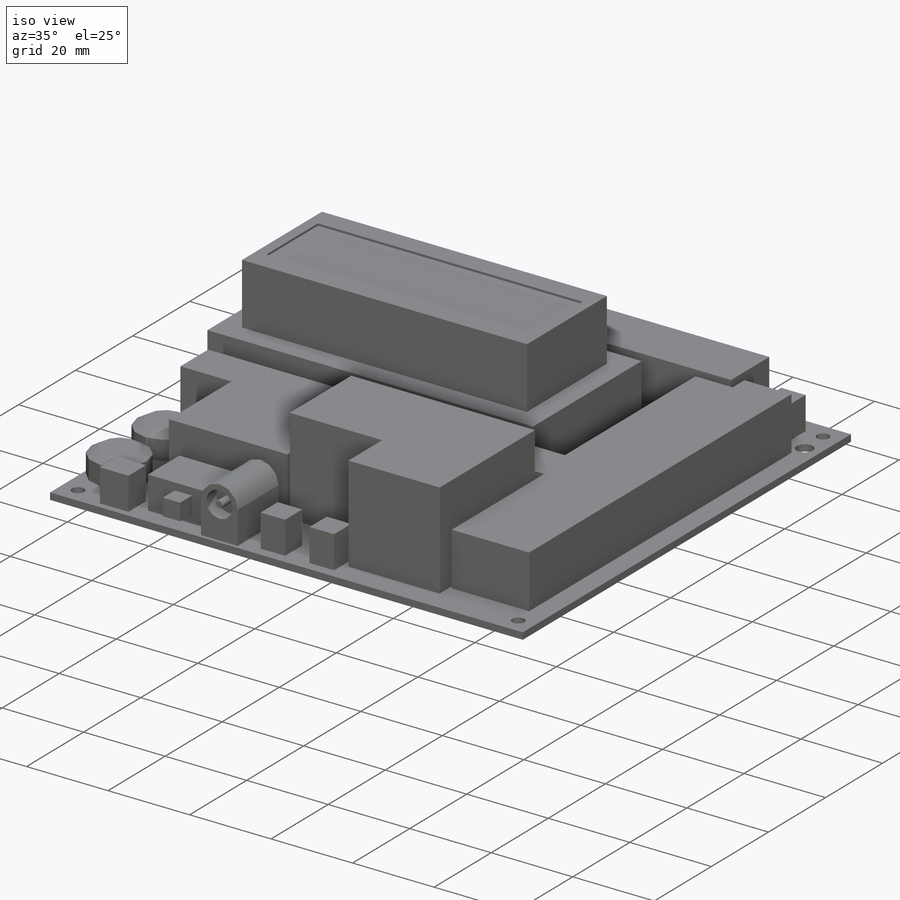
[diagram: iso view]
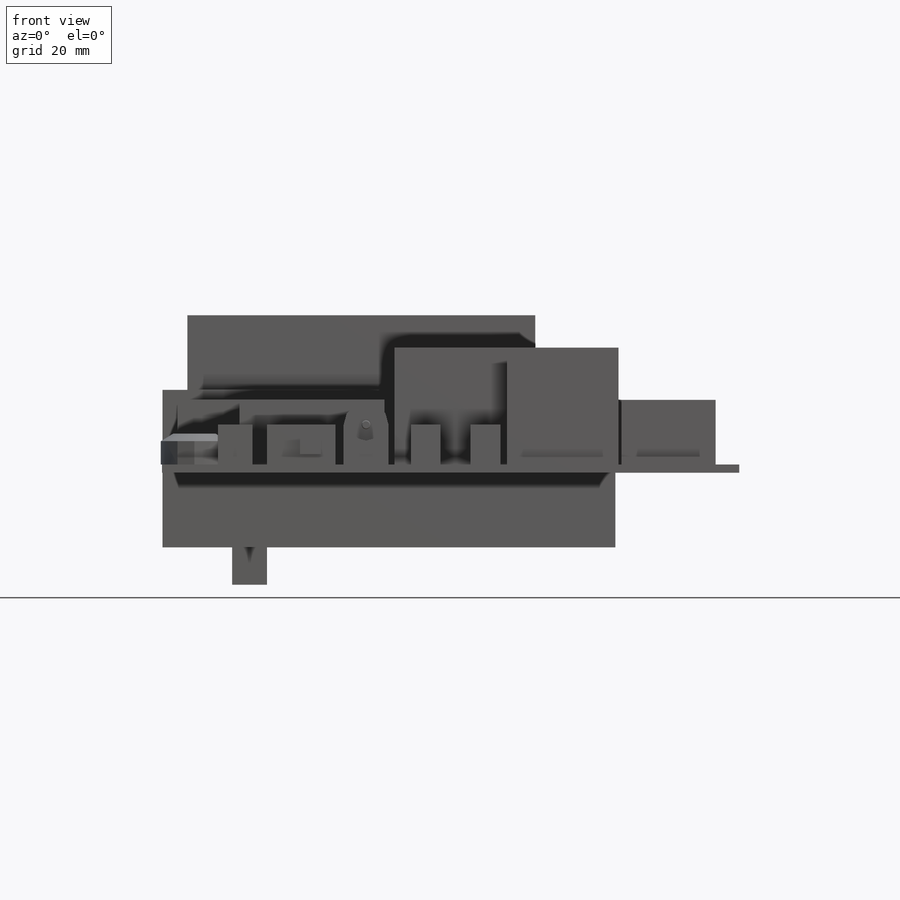
[diagram: front view]
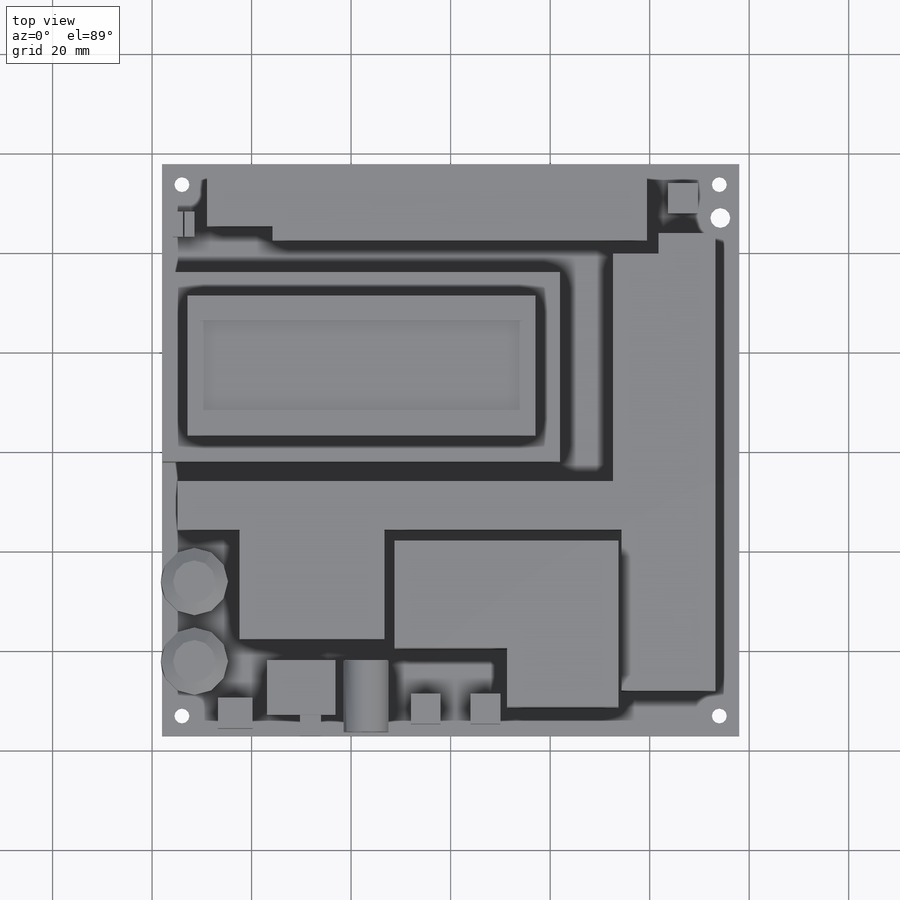
[diagram: top view]
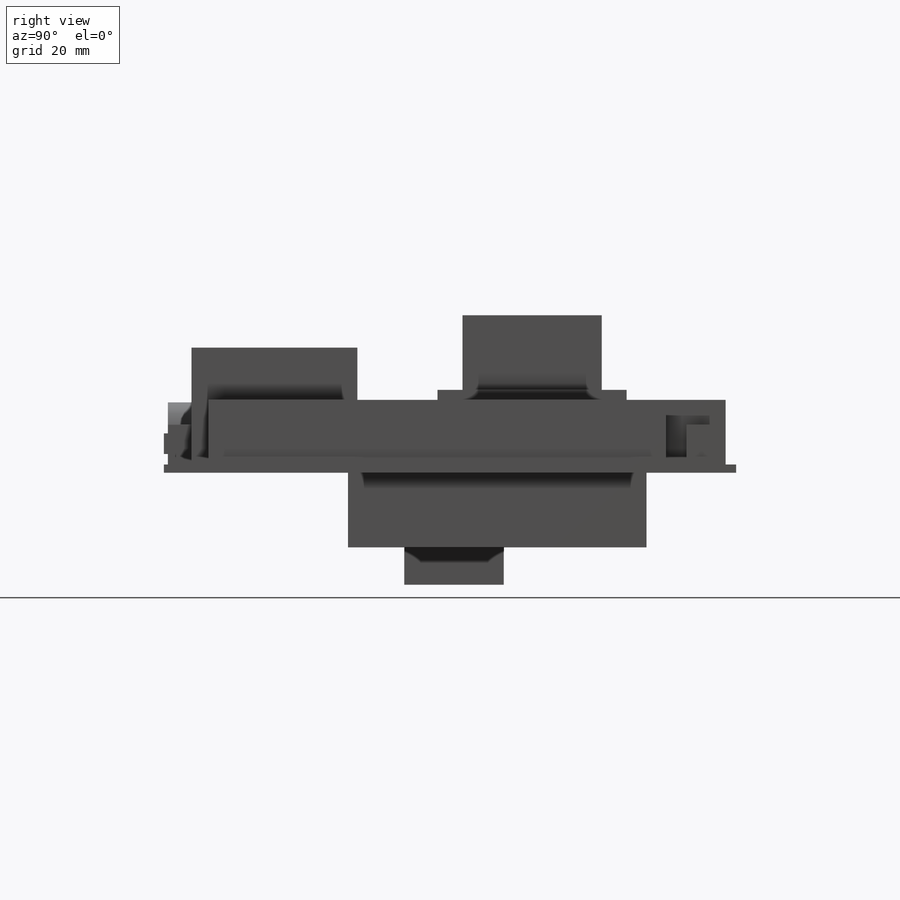
[diagram: right view]
SOLIDWORKS PART (.sldprt)
format: sldprt  version: not decoded by parser v0  size: 621,056 bytes
history: native  units: mm
features: sketch x15, extrude x9, cut_extrude x4, sheet_metal_op x2, chamfer x2, material x1, fillet x1 + 1 further entry (+11 scaffold rows collapsed; 1 parser-record rows omitted)
feature tree (47):
  scaffold x11  (default folders/planes/origin — collapsed)
  material  "Material <not specified>"
  sketch  "Sketch1"  dims[D5=3.0mm D1=115.0mm D2=116.0mm D3=108.0mm D4=106.8mm]
  sheet_metal_op  "Sheet-Metal1"
  sheet_metal_op  "Base-Flange1"
  sketch  "Sketch3"  dims[D1=22.0mm D2=60.0mm D3=80.0mm D4=0.1mm]
  extrude  "Extrude1"  Depth=15mm
  sketch  "Sketch4"  dims[D1=5.0mm]
  extrude  "Extrude2"  Depth=15mm
  sketch  "Sketch6"  dims[D2=2.5mm D3=2.5mm D1=5.0mm]
  cut_extrude  "Display!"  Depth=0.53mm
  sketch  "Sketch7"  dims[D1=91.0mm D2=60.0mm D3=18.0mm D4=0.1mm]
  extrude  "Wiring Board"  Depth=15mm
  sketch  "Sketch8"  dims[D1=20.0mm D2=7.0mm D3=14.0mm D4=11.3mm]
  extrude  "Extrude5"  Depth=7.5mm
  sketch  "Sketch9"  dims[D1=8.5mm D2=10.5mm D3=10.0mm D4=3.4mm D5=2.5mm]
  cut_extrude  "USB"  Depth=7.5mm
  chamfer  "Chamfer1"  Distance=2mm Angle=45deg
  sketch  "Sketch10"  dims[c1.D1=13.5mm c1.D3=13.5mm c1.D2=6.5mm c2.D3=16.0mm c2.D4=15.0mm]
  extrude  "Potentiometers"  Depth=6.2mm
  sketch  "Sketch11"  dims[c1.D1=7.0mm c1.D2=13.8mm c1.D3=11.0mm c1.D4=2.0mm c1.D5=11.2mm c2.D4=7.6mm c2.D6=1.5mm c2.D7=21.1mm c2.D8=4.2mm c2.D9=9.0mm c2.D10=14.3mm c2.D11=36.5mm c2.D12=0.8mm c2.D13=6.0mm c2.D14=2.4mm c2.D15=50.0mm c2.D16=6.0mm c2.D17=4.0mm c2.D18=8.34mm c2.D19=2.18mm c2.D20=2.0mm c2.D21=0.3mm c2.D22=5.0mm c2.D23=14.7mm]
  extrude  "Keep Accessible!!"  Depth=8mm
  sketch  "Sketch12"
  extrude  "Extrude9"  Depth=13mm
  sketch  "Sketch13"
  extrude  "Hot! Voltage Regs"  Depth=23.5mm
  sketch  "Sketch14"
  extrude  "Extrude10"  [1 undecoded]
  sketch  "Sketch15"
  cut_extrude  "Extrude11"  Depth=10mm
  fillet  "Fillet1"  Radius=0.2mm
  chamfer  "Chamfer2"  Distance=1.5mm
  sketch  "Sketch16"  dims[c1.D1=4.0mm c1.D2=4.0mm c1.D3=4.0mm c2.D2=3.8mm c2.D3=10.8mm]
  cut_extrude  "Extrude12"  Depth=10mm
  "Flat-Pattern1"
  sketch  "Bend-Lines1"
  parser-record x1  (decoder bookkeeping rows leaked as tree rows — omitted from the tree; the rows remain in map.json)
decode coverage: 25 of 33 modeling features carry decoded parameters; 1 rows unclassified (native names shown)
note: 1 parameter value undecoded
note: suppression state not decoded; provenance and decode notes live in map.json
